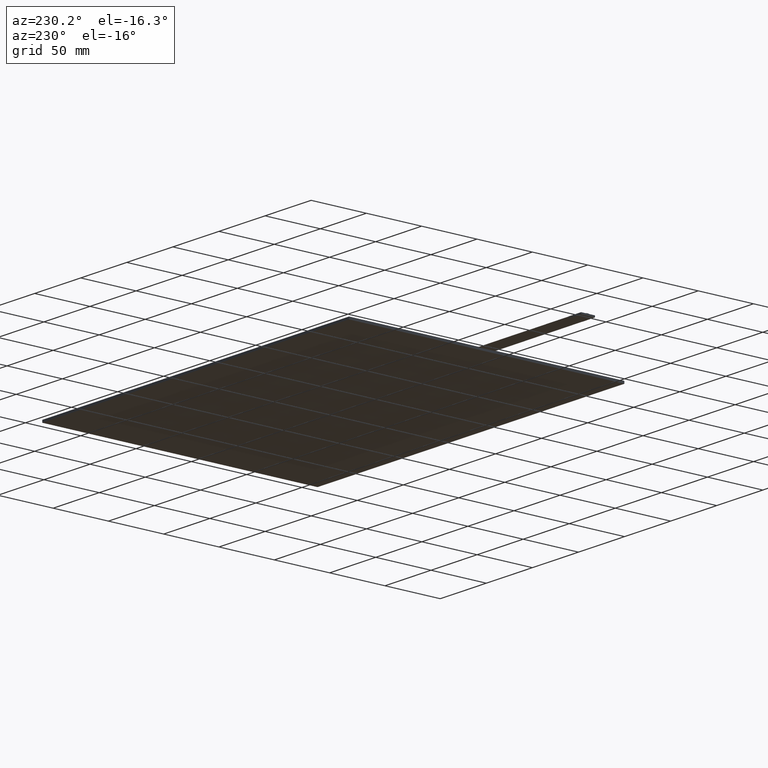
[diagram: clean part render]
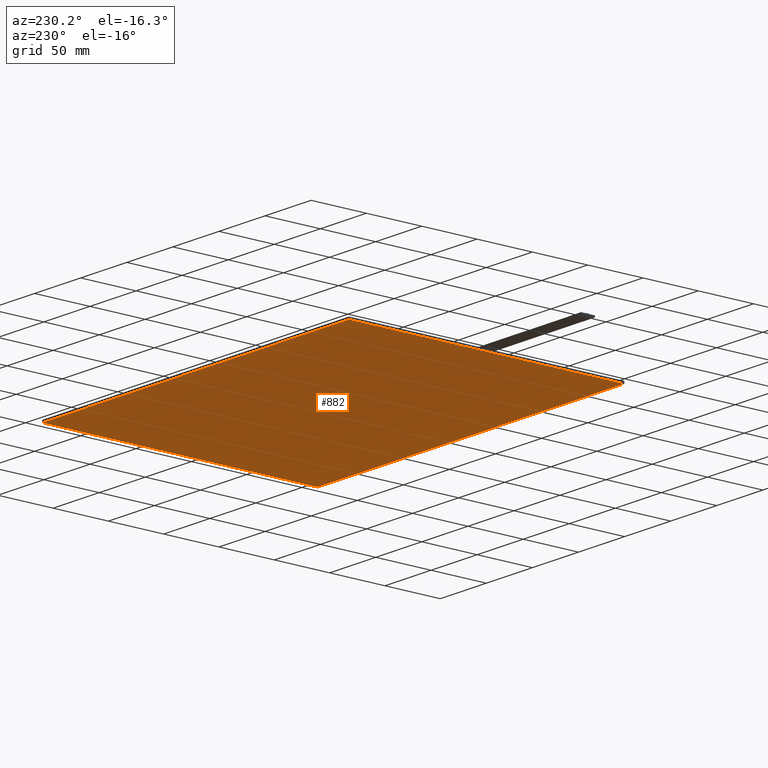
[diagram: same view with one face highlighted and labeled with its STEP entity id]
A machine part, auxiliary view. The second image highlights one B-rep face of the part: STEP entity #882.
In plain terms, the highlighted planar face has unit normal (0, 0, -1).
Its self-contained STEP definition (entity closure, byte-faithful):
#104=FACE_OUTER_BOUND('',#150,.T.);
#150=EDGE_LOOP('',(#793,#794,#795,#796));
#255=LINE('',#1363,#369);
#258=LINE('',#1369,#372);
#261=LINE('',#1375,#375);
#264=LINE('',#1379,#378);
#369=VECTOR('',#1128,10.);
#372=VECTOR('',#1133,10.);
#375=VECTOR('',#1138,10.);
#378=VECTOR('',#1143,10.);
#449=VERTEX_POINT('',#1360);
#450=VERTEX_POINT('',#1362);
#452=VERTEX_POINT('',#1368);
#454=VERTEX_POINT('',#1374);
#559=EDGE_CURVE('',#450,#449,#255,.T.);
#562=EDGE_CURVE('',#452,#450,#258,.T.);
#565=EDGE_CURVE('',#454,#452,#261,.T.);
#568=EDGE_CURVE('',#449,#454,#264,.T.);
#793=ORIENTED_EDGE('',*,*,#568,.T.);
#794=ORIENTED_EDGE('',*,*,#565,.T.);
#795=ORIENTED_EDGE('',*,*,#562,.T.);
#796=ORIENTED_EDGE('',*,*,#559,.T.);
#839=PLANE('',#945);
#882=ADVANCED_FACE('',(#104),#839,.T.);
#945=AXIS2_PLACEMENT_3D('',#1381,#1146,#1147);
#1128=DIRECTION('',(1.,0.,0.));
#1133=DIRECTION('',(-2.85496116907787E-16,1.,0.));
#1138=DIRECTION('',(-1.,-1.60089837725329E-16,0.));
#1143=DIRECTION('',(0.,-1.,0.));
#1146=DIRECTION('center_axis',(0.,0.,-1.));
#1147=DIRECTION('ref_axis',(-1.,0.,0.));
#1360=CARTESIAN_POINT('',(162.435,124.435,-2.1));
#1362=CARTESIAN_POINT('',(-170.445,124.435,-2.1));
#1363=CARTESIAN_POINT('',(162.435,124.435,-2.1));
#1368=CARTESIAN_POINT('',(-170.445,-124.445,-2.1));
#1369=CARTESIAN_POINT('',(-170.445,124.435,-2.1));
#1374=CARTESIAN_POINT('',(162.435,-124.445,-2.1));
#1375=CARTESIAN_POINT('',(-170.445,-124.445,-2.1));
#1379=CARTESIAN_POINT('',(162.435,-124.445,-2.1));
#1381=CARTESIAN_POINT('Origin',(-4.00500000000001,-0.00500000000004164,
-2.1));